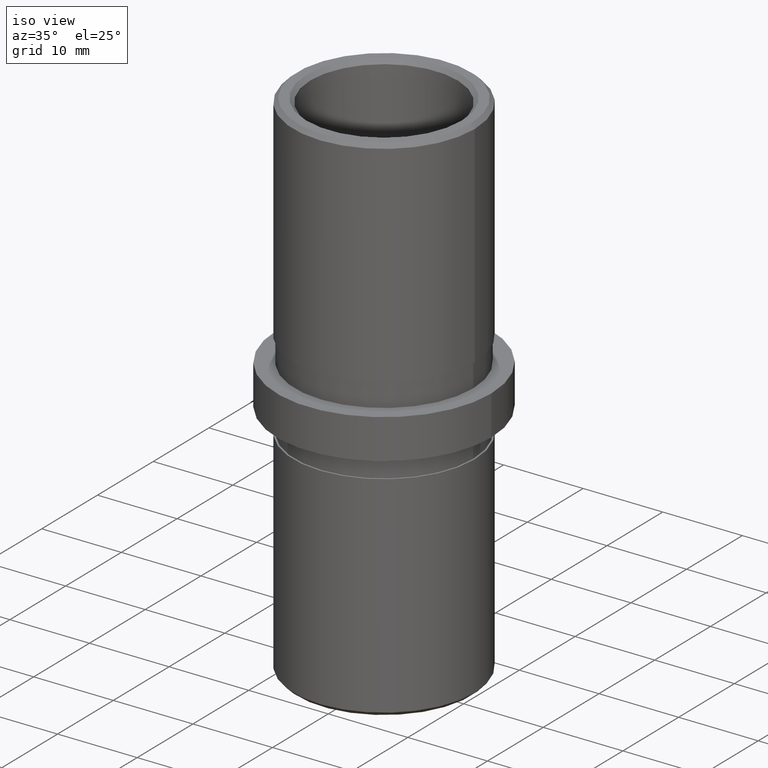
[diagram: clean part render]
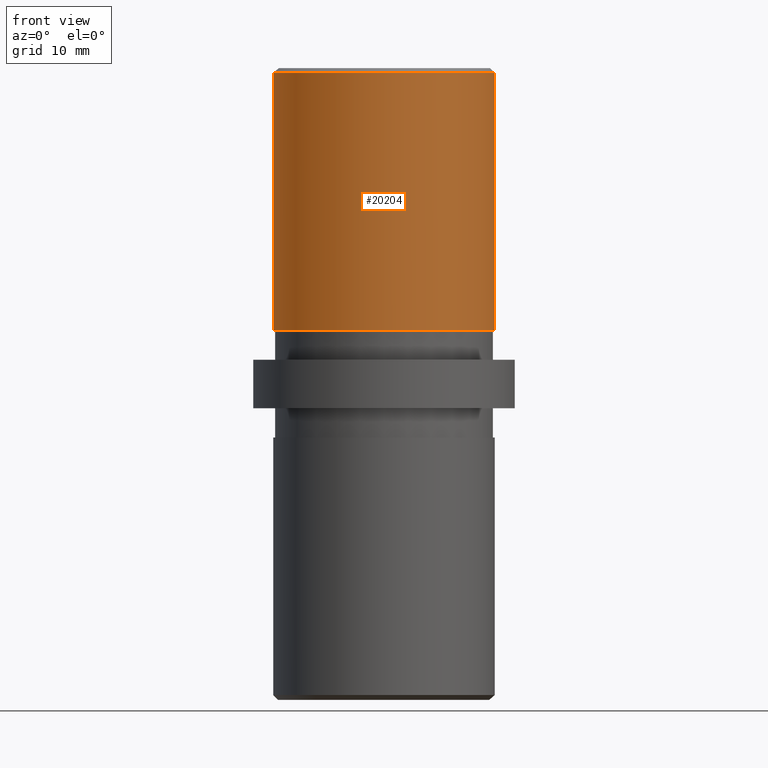
[diagram: tour spotlight — one face highlighted and labeled with its STEP entity id]
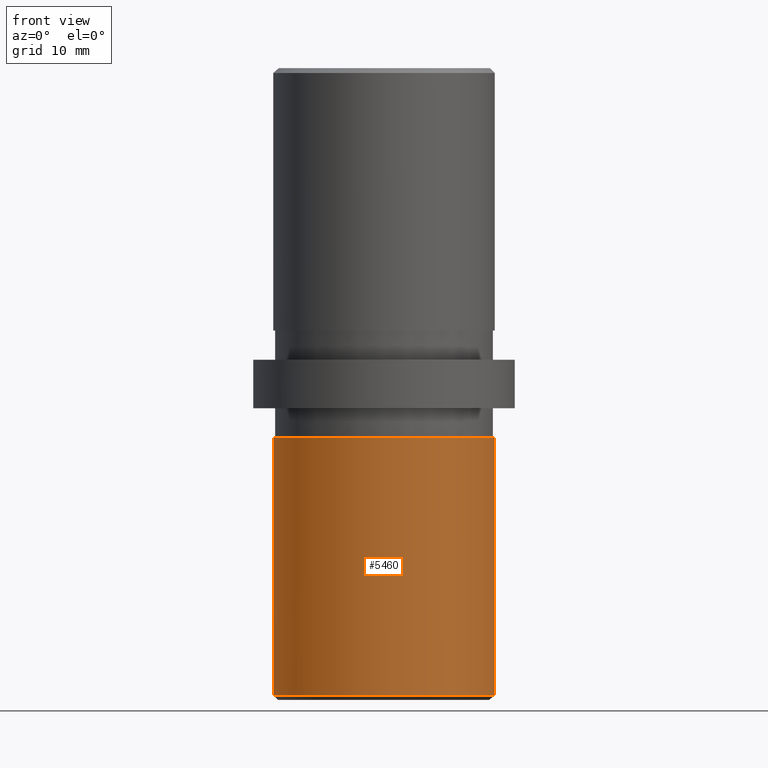
[diagram: tour spotlight — one face highlighted and labeled with its STEP entity id]
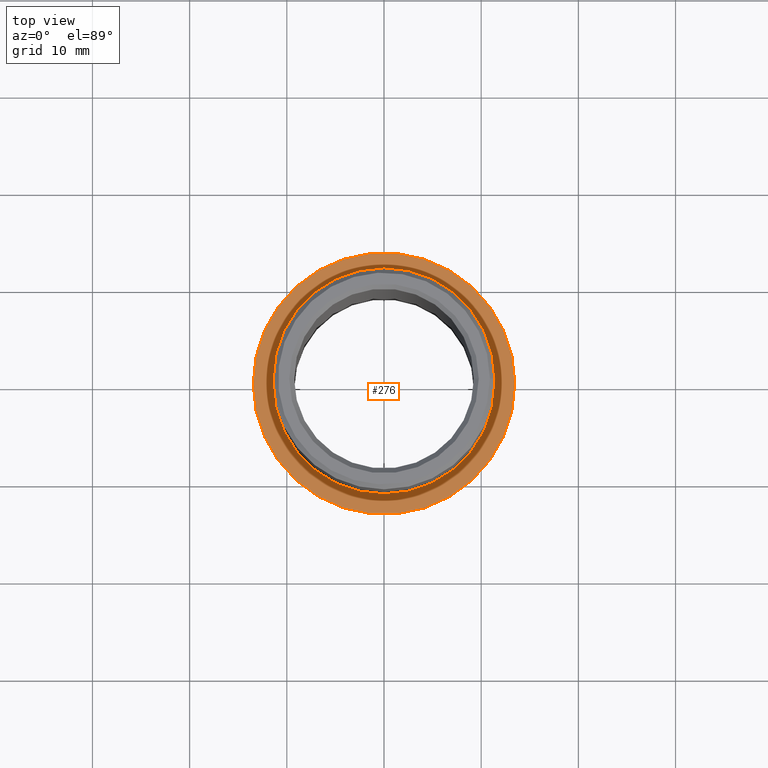
[diagram: tour spotlight — one face highlighted and labeled with its STEP entity id]
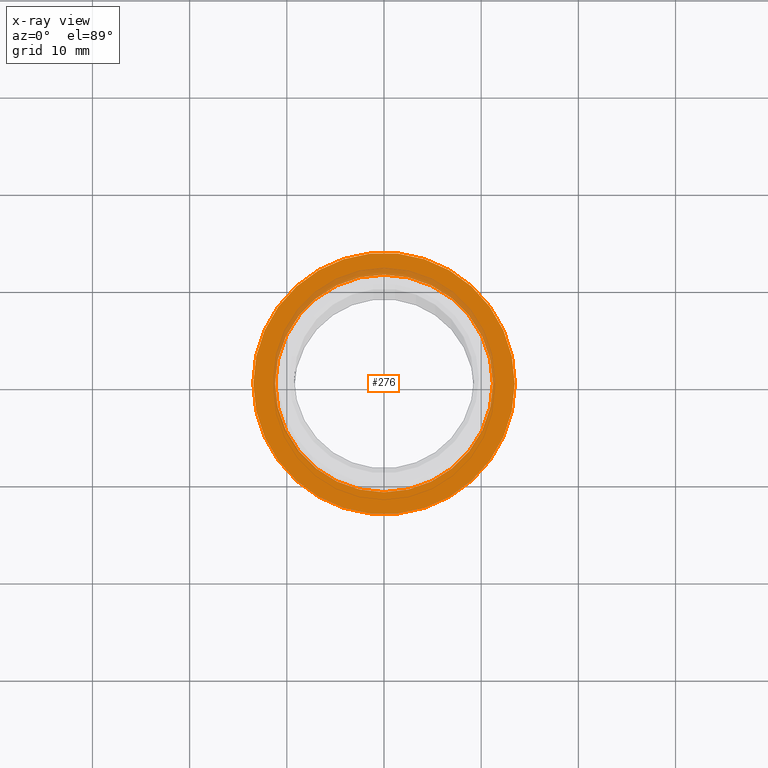
[diagram: x-ray of the same camera — body ghosted, this tour face saturated]
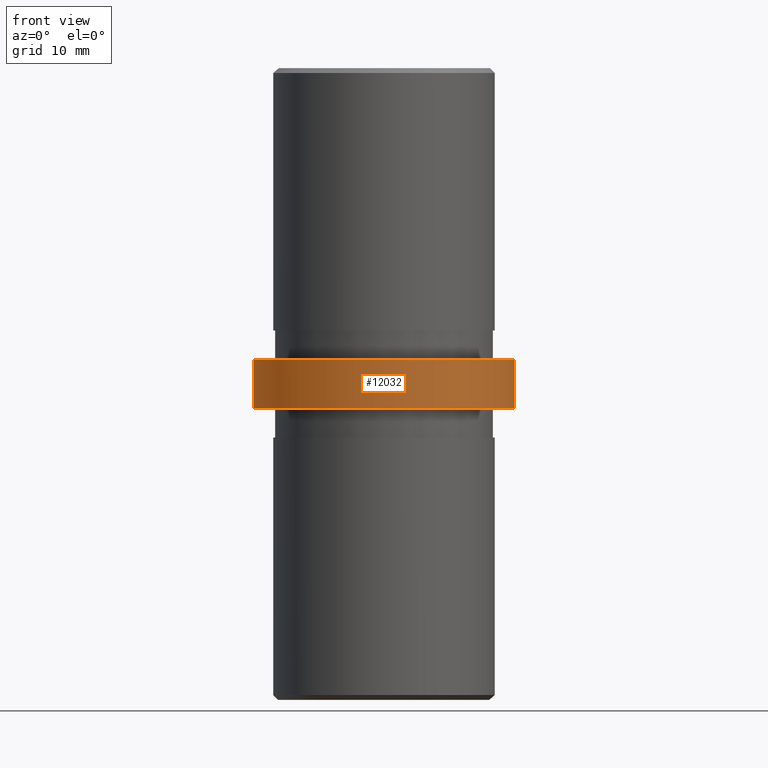
[diagram: tour spotlight — one face highlighted and labeled with its STEP entity id]
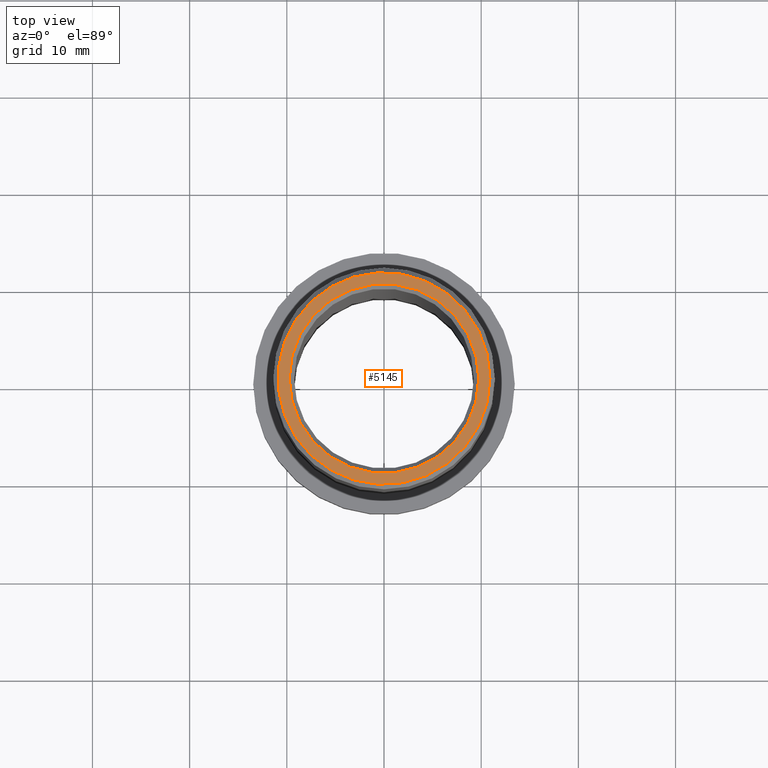
[diagram: tour spotlight — one face highlighted and labeled with its STEP entity id]
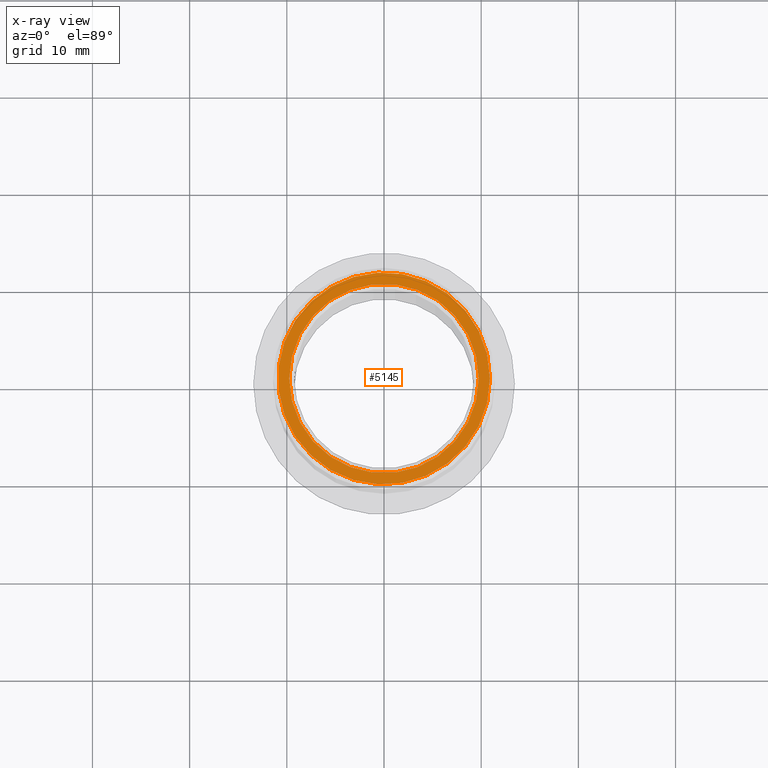
[diagram: x-ray of the same camera — body ghosted, this tour face saturated]
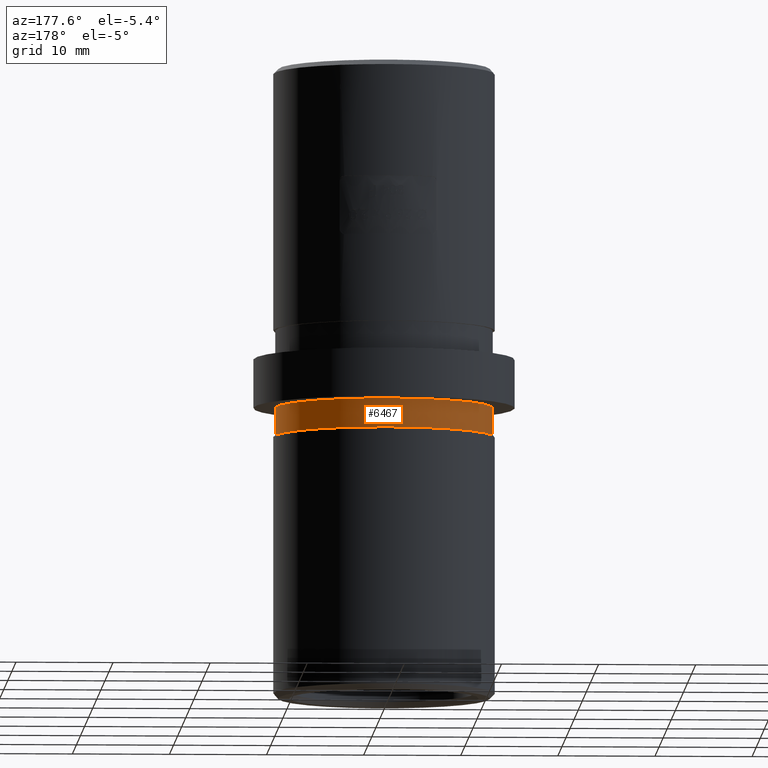
[diagram: tour spotlight — one face highlighted and labeled with its STEP entity id]
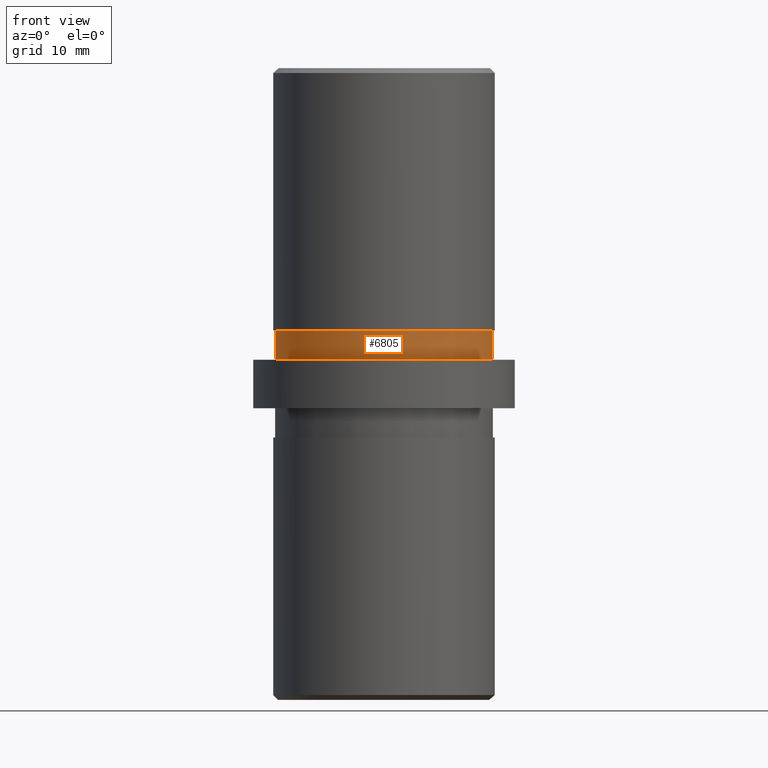
[diagram: tour spotlight — one face highlighted and labeled with its STEP entity id]
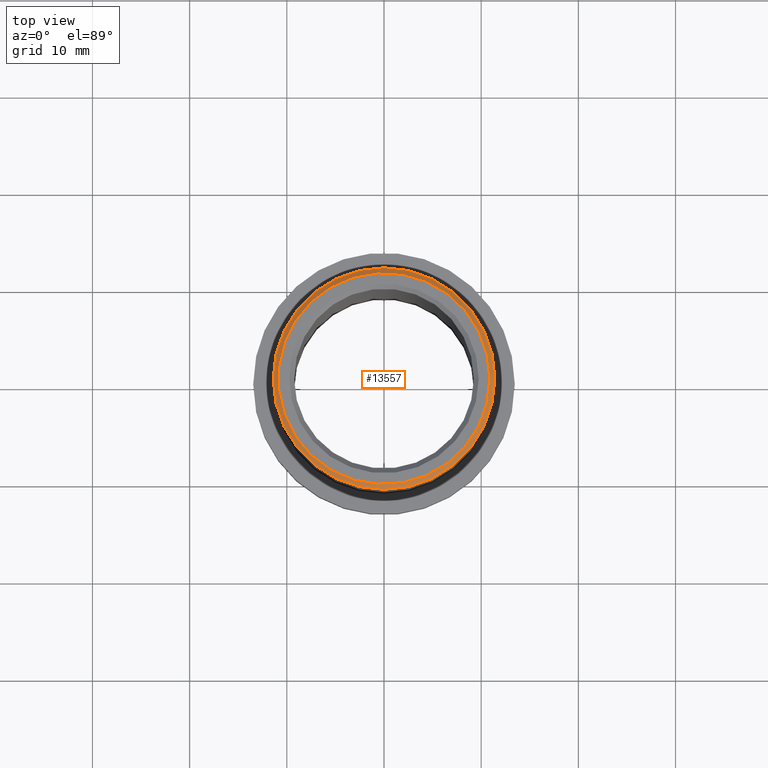
[diagram: tour spotlight — one face highlighted and labeled with its STEP entity id]
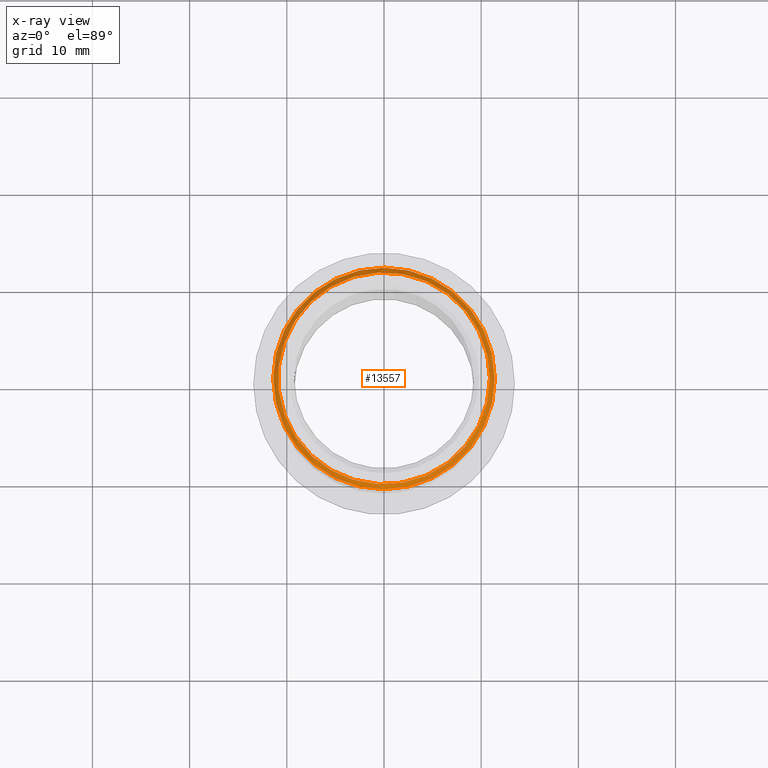
[diagram: x-ray of the same camera — body ghosted, this tour face saturated]
A machine part: a face-by-face anatomy tour. The part has 416 B-rep faces; the first image is the clean iso view, then the 8 largest visible faces are spotlighted one at a time (largest first), each with its STEP entity span.

Face 1 — front view, entity #20204. In plain terms, the highlighted cylindrical surface (bore or boss wall) has radius 11.4 mm, axis along (-0, -0, -1).
Definition (entity closure, byte-faithful):
#330 = EDGE_CURVE ( 'NONE', #13348, #13348, #7049, .T. ) ;
#884 = CARTESIAN_POINT ( 'NONE',  ( 4.751012916463460023, 10.36333854927969433, 14.54822077462146801 ) ) ;
#1168 = AXIS2_PLACEMENT_3D ( 'NONE', #10501, #12653, #9314 ) ;
#1365 = ORIENTED_EDGE ( 'NONE', *, *, #15067, .T. ) ;
#1384 = CARTESIAN_POINT ( 'NONE',  ( -4.499999999999998224, 10.47425415005765537, 20.50000000000000355 ) ) ;
#1707 = CARTESIAN_POINT ( 'NONE',  ( -4.999999999999999112, 10.24499877989255836, 20.13906817043983111 ) ) ;
#1773 = CARTESIAN_POINT ( 'NONE',  ( -4.999999999999996447, 10.24499877989256014, 20.00000000000000000 ) ) ;
#1848 = CARTESIAN_POINT ( 'NONE',  ( -4.499999999999998224, 10.47425415005765537, 20.50000000000000355 ) ) ;
#1908 = CARTESIAN_POINT ( 'NONE',  ( 5.000000000000003553, 10.24499877989255658, 32.50000000000000000 ) ) ;
#2032 = EDGE_CURVE ( 'NONE', #8870, #11290, #2797, .T. ) ;
#2208 = FACE_BOUND ( 'NONE', #12375, .T. ) ;
#2531 = CARTESIAN_POINT ( 'NONE',  ( -4.627191762389832874, 10.41960940661775403, 14.50000000000000178 ) ) ;
#2538 = CARTESIAN_POINT ( 'NONE',  ( 11.40000000000000036, 0.000000000000000000, 5.500000000000000000 ) ) ;
#2652 = VERTEX_POINT ( 'NONE', #3763 ) ;
#2797 = CIRCLE ( 'NONE', #1168, 11.40000000000000036 ) ;
#3044 = LINE ( 'NONE', #1908, #12001 ) ;
#3198 = DIRECTION ( 'NONE',  ( 1.000000000000000000, 0.000000000000000000, 0.000000000000000000 ) ) ;
#3666 = CYLINDRICAL_SURFACE ( 'NONE', #17550, 11.40000000000000036 ) ;
#3763 = CARTESIAN_POINT ( 'NONE',  ( 5.000000000000003553, 10.24499877989255658, 20.00000000000000355 ) ) ;
#3855 = VERTEX_POINT ( 'NONE', #18655 ) ;
#3941 = B_SPLINE_CURVE_WITH_KNOTS ( 'NONE', 3,
 ( #1848, #6683, #13051, #12984, #1707, #1773 ),
 .UNSPECIFIED., .F., .F.,
 ( 4, 2, 4 ),
 ( 8.673617379884034509E-19, 0.0004100866104508919742, 0.0008201732209017830811 ),
 .UNSPECIFIED. ) ;
#4239 = CARTESIAN_POINT ( 'NONE',  ( 5.000000000000000888, 10.24499877989256014, 14.86093182956016889 ) ) ;
#5087 = CARTESIAN_POINT ( 'NONE',  ( 4.939482889418027156, 10.27483479752883788, 20.27145732407431566 ) ) ;
#5541 = CARTESIAN_POINT ( 'NONE',  ( -4.999999999999996447, 10.24499877989256014, 20.00000000000000000 ) ) ;
#5571 = CARTESIAN_POINT ( 'NONE',  ( 4.940101426292657472, 10.27454658451313030, 14.72903378939378349 ) ) ;
#5639 = DIRECTION ( 'NONE',  ( 0.000000000000000000, 0.000000000000000000, -1.000000000000000000 ) ) ;
#5643 = AXIS2_PLACEMENT_3D ( 'NONE', #16591, #5639, #19832 ) ;
#5694 = DIRECTION ( 'NONE',  ( -3.469446951953614682E-16, 0.000000000000000000, 1.000000000000000000 ) ) ;
#5822 = DIRECTION ( 'NONE',  ( -1.000000000000000000, 0.000000000000000000, 0.000000000000000000 ) ) ;
#5895 = DIRECTION ( 'NONE',  ( 1.000000000000000000, 0.000000000000000000, 3.043374519257556029E-16 ) ) ;
#6015 = CIRCLE ( 'NONE', #8050, 11.40000000000000036 ) ;
#6518 = CARTESIAN_POINT ( 'NONE',  ( 4.500000000000001776, 10.47425415005765359, 20.50000000000000355 ) ) ;
#6532 = ORIENTED_EDGE ( 'NONE', *, *, #13594, .T. ) ;
#6683 = CARTESIAN_POINT ( 'NONE',  ( -4.627381495467767891, 10.41952789257021195, 20.49999999999999645 ) ) ;
#6969 = ORIENTED_EDGE ( 'NONE', *, *, #330, .T. ) ;
#7049 = CIRCLE ( 'NONE', #5643, 11.40000000000000036 ) ;
#7205 = CIRCLE ( 'NONE', #11068, 11.40000000000000036 ) ;
#7716 = ORIENTED_EDGE ( 'NONE', *, *, #15297, .F. ) ;
#8050 = AXIS2_PLACEMENT_3D ( 'NONE', #10839, #14264, #3198 ) ;
#8833 = EDGE_LOOP ( 'NONE', ( #13433 ) ) ;
#8839 = VERTEX_POINT ( 'NONE', #19214 ) ;
#8870 = VERTEX_POINT ( 'NONE', #11547 ) ;
#9314 = DIRECTION ( 'NONE',  ( 1.000000000000000000, 0.000000000000000000, 0.000000000000000000 ) ) ;
#9689 = ORIENTED_EDGE ( 'NONE', *, *, #18413, .T. ) ;
#10140 = FACE_OUTER_BOUND ( 'NONE', #8833, .T. ) ;
#10283 = CARTESIAN_POINT ( 'NONE',  ( 4.627381495467772332, 10.41952789257021195, 14.49999999999999645 ) ) ;
#10488 = LINE ( 'NONE', #17131, #15903 ) ;
#10501 = CARTESIAN_POINT ( 'NONE',  ( 0.000000000000000000, 0.000000000000000000, 14.49999999999999822 ) ) ;
#10686 = CARTESIAN_POINT ( 'NONE',  ( 0.000000000000000000, 0.000000000000000000, 20.50000000000000355 ) ) ;
#10839 = CARTESIAN_POINT ( 'NONE',  ( 0.000000000000000000, 0.000000000000000000, 5.500000000000000000 ) ) ;
#11068 = AXIS2_PLACEMENT_3D ( 'NONE', #10686, #5694, #5895 ) ;
#11212 = CARTESIAN_POINT ( 'NONE',  ( 4.627191762389834651, 10.41960940661775048, 20.50000000000000355 ) ) ;
#11290 = VERTEX_POINT ( 'NONE', #19800 ) ;
#11354 = CARTESIAN_POINT ( 'NONE',  ( 5.000000000000000888, 10.24499877989255658, 20.13875873895914026 ) ) ;
#11547 = CARTESIAN_POINT ( 'NONE',  ( 4.500000000000001776, 10.47425415005765537, 14.49999999999999822 ) ) ;
#12000 = EDGE_LOOP ( 'NONE', ( #6969 ) ) ;
#12001 = VECTOR ( 'NONE', #12981, 1000.000000000000000 ) ;
#12109 = CARTESIAN_POINT ( 'NONE',  ( -4.939482889418023603, 10.27483479752884143, 14.72854267592569855 ) ) ;
#12281 = DIRECTION ( 'NONE',  ( -0.000000000000000000, -0.000000000000000000, -1.000000000000000000 ) ) ;
#12375 = EDGE_LOOP ( 'NONE', ( #7716, #13509, #9689, #16669, #15310, #1365, #13471, #6532 ) ) ;
#12640 = DIRECTION ( 'NONE',  ( -0.000000000000000000, -0.000000000000000000, -1.000000000000000000 ) ) ;
#12653 = DIRECTION ( 'NONE',  ( -0.000000000000000000, 0.000000000000000000, 1.000000000000000000 ) ) ;
#12793 = CARTESIAN_POINT ( 'NONE',  ( 5.000000000000003553, 10.24499877989255658, 20.00000000000000355 ) ) ;
#12857 = CARTESIAN_POINT ( 'NONE',  ( 4.752034932197159556, 10.36286086631201009, 20.45090207566297380 ) ) ;
#12981 = DIRECTION ( 'NONE',  ( -0.000000000000000000, -0.000000000000000000, -1.000000000000000000 ) ) ;
#12984 = CARTESIAN_POINT ( 'NONE',  ( -4.940101426292656583, 10.27454658451313030, 20.27096621060621118 ) ) ;
#13051 = CARTESIAN_POINT ( 'NONE',  ( -4.751012916463458247, 10.36333854927969433, 20.45177922537854087 ) ) ;
#13332 = EDGE_CURVE ( 'NONE', #17007, #14671, #3941, .T. ) ;
#13336 = EDGE_CURVE ( 'NONE', #2652, #18564, #14665, .T. ) ;
#13348 = VERTEX_POINT ( 'NONE', #14846 ) ;
#13433 = ORIENTED_EDGE ( 'NONE', *, *, #14512, .T. ) ;
#13471 = ORIENTED_EDGE ( 'NONE', *, *, #2032, .F. ) ;
#13509 = ORIENTED_EDGE ( 'NONE', *, *, #13336, .T. ) ;
#13594 = EDGE_CURVE ( 'NONE', #8870, #3855, #16247, .T. ) ;
#14264 = DIRECTION ( 'NONE',  ( 0.000000000000000000, 0.000000000000000000, 1.000000000000000000 ) ) ;
#14512 = EDGE_CURVE ( 'NONE', #19459, #19459, #6015, .T. ) ;
#14665 = B_SPLINE_CURVE_WITH_KNOTS ( 'NONE', 3,
 ( #12793, #11354, #5087, #12857, #11212, #19149 ),
 .UNSPECIFIED., .F., .F.,
 ( 4, 2, 4 ),
 ( 0.000000000000000000, 0.0004100544316980266925, 0.0008201088633960533850 ),
 .UNSPECIFIED. ) ;
#14671 = VERTEX_POINT ( 'NONE', #5541 ) ;
#14846 = CARTESIAN_POINT ( 'NONE',  ( 11.40000000000000036, 0.000000000000000000, 31.99999999999998579 ) ) ;
#14988 = B_SPLINE_CURVE_WITH_KNOTS ( 'NONE', 3,
 ( #18322, #18455, #12109, #15255, #2531, #18256 ),
 .UNSPECIFIED., .F., .F.,
 ( 4, 2, 4 ),
 ( 1.734723475976807094E-18, 0.0004100544316980272888, 0.0008201088633960528429 ),
 .UNSPECIFIED. ) ;
#15067 = EDGE_CURVE ( 'NONE', #8839, #11290, #14988, .T. ) ;
#15241 = CARTESIAN_POINT ( 'NONE',  ( 4.500000000000001776, 10.47425415005765537, 14.49999999999999822 ) ) ;
#15255 = CARTESIAN_POINT ( 'NONE',  ( -4.752034932197156003, 10.36286086631201009, 14.54909792433702975 ) ) ;
#15297 = EDGE_CURVE ( 'NONE', #2652, #3855, #3044, .T. ) ;
#15310 = ORIENTED_EDGE ( 'NONE', *, *, #15558, .T. ) ;
#15558 = EDGE_CURVE ( 'NONE', #14671, #8839, #10488, .T. ) ;
#15903 = VECTOR ( 'NONE', #12640, 1000.000000000000000 ) ;
#16247 = B_SPLINE_CURVE_WITH_KNOTS ( 'NONE', 3,
 ( #15241, #10283, #884, #5571, #4239, #18171 ),
 .UNSPECIFIED., .F., .F.,
 ( 4, 2, 4 ),
 ( 0.000000000000000000, 0.0004100866104508907816, 0.0008201732209017815632 ),
 .UNSPECIFIED. ) ;
#16591 = CARTESIAN_POINT ( 'NONE',  ( 0.000000000000000000, 0.000000000000000000, 31.99999999999998579 ) ) ;
#16669 = ORIENTED_EDGE ( 'NONE', *, *, #13332, .T. ) ;
#16764 = FACE_OUTER_BOUND ( 'NONE', #12000, .T. ) ;
#17007 = VERTEX_POINT ( 'NONE', #1384 ) ;
#17131 = CARTESIAN_POINT ( 'NONE',  ( -4.999999999999996447, 10.24499877989256014, 32.50000000000000000 ) ) ;
#17550 = AXIS2_PLACEMENT_3D ( 'NONE', #19940, #12281, #5822 ) ;
#18171 = CARTESIAN_POINT ( 'NONE',  ( 5.000000000000003553, 10.24499877989255658, 15.00000000000000000 ) ) ;
#18256 = CARTESIAN_POINT ( 'NONE',  ( -4.499999999999998224, 10.47425415005765359, 14.49999999999999822 ) ) ;
#18322 = CARTESIAN_POINT ( 'NONE',  ( -4.999999999999996447, 10.24499877989256014, 15.00000000000000000 ) ) ;
#18413 = EDGE_CURVE ( 'NONE', #18564, #17007, #7205, .T. ) ;
#18455 = CARTESIAN_POINT ( 'NONE',  ( -4.999999999999999112, 10.24499877989255836, 14.86124126104086862 ) ) ;
#18564 = VERTEX_POINT ( 'NONE', #6518 ) ;
#18655 = CARTESIAN_POINT ( 'NONE',  ( 5.000000000000003553, 10.24499877989255658, 15.00000000000000000 ) ) ;
#19149 = CARTESIAN_POINT ( 'NONE',  ( 4.500000000000001776, 10.47425415005765359, 20.50000000000000355 ) ) ;
#19214 = CARTESIAN_POINT ( 'NONE',  ( -4.999999999999996447, 10.24499877989256014, 15.00000000000000000 ) ) ;
#19459 = VERTEX_POINT ( 'NONE', #2538 ) ;
#19800 = CARTESIAN_POINT ( 'NONE',  ( -4.499999999999998224, 10.47425415005765359, 14.49999999999999822 ) ) ;
#19832 = DIRECTION ( 'NONE',  ( 1.000000000000000000, 0.000000000000000000, 0.000000000000000000 ) ) ;
#19940 = CARTESIAN_POINT ( 'NONE',  ( 0.000000000000000000, 0.000000000000000000, 32.50000000000000000 ) ) ;
#20204 = ADVANCED_FACE ( 'NONE', ( #2208, #16764, #10140 ), #3666, .T. ) ;

Face 2 — front view, entity #5460. In plain terms, the highlighted cylindrical surface (bore or boss wall) has radius 11.4 mm, axis along (-0, -0, 1).
Definition (entity closure, byte-faithful):
#1125 = EDGE_LOOP ( 'NONE', ( #16680 ) ) ;
#1540 = DIRECTION ( 'NONE',  ( -1.000000000000000000, 0.000000000000000000, 0.000000000000000000 ) ) ;
#1996 = CARTESIAN_POINT ( 'NONE',  ( -11.40000000000000036, 0.000000000000000000, -31.99999999999998579 ) ) ;
#2031 = CARTESIAN_POINT ( 'NONE',  ( 0.000000000000000000, 0.000000000000000000, -32.50000000000000000 ) ) ;
#4919 = VERTEX_POINT ( 'NONE', #1996 ) ;
#5460 = ADVANCED_FACE ( 'NONE', ( #20024, #11227 ), #7966, .T. ) ;
#7350 = DIRECTION ( 'NONE',  ( -1.000000000000000000, 0.000000000000000000, 0.000000000000000000 ) ) ;
#7844 = EDGE_LOOP ( 'NONE', ( #10910 ) ) ;
#7966 = CYLINDRICAL_SURFACE ( 'NONE', #16657, 11.40000000000000036 ) ;
#8276 = EDGE_CURVE ( 'NONE', #4919, #4919, #12140, .T. ) ;
#8374 = EDGE_CURVE ( 'NONE', #15309, #15309, #10400, .T. ) ;
#10400 = CIRCLE ( 'NONE', #13938, 11.40000000000000036 ) ;
#10897 = DIRECTION ( 'NONE',  ( -0.000000000000000000, -0.000000000000000000, 1.000000000000000000 ) ) ;
#10910 = ORIENTED_EDGE ( 'NONE', *, *, #8276, .T. ) ;
#11227 = FACE_OUTER_BOUND ( 'NONE', #1125, .T. ) ;
#12140 = CIRCLE ( 'NONE', #19973, 11.40000000000000036 ) ;
#13009 = CARTESIAN_POINT ( 'NONE',  ( 0.000000000000000000, 0.000000000000000000, -5.500000000000000000 ) ) ;
#13073 = CARTESIAN_POINT ( 'NONE',  ( 11.40000000000000036, 0.000000000000000000, -5.500000000000000000 ) ) ;
#13112 = DIRECTION ( 'NONE',  ( -0.000000000000000000, -0.000000000000000000, 1.000000000000000000 ) ) ;
#13938 = AXIS2_PLACEMENT_3D ( 'NONE', #13009, #17578, #14382 ) ;
#14382 = DIRECTION ( 'NONE',  ( 1.000000000000000000, 0.000000000000000000, 0.000000000000000000 ) ) ;
#15309 = VERTEX_POINT ( 'NONE', #13073 ) ;
#16657 = AXIS2_PLACEMENT_3D ( 'NONE', #2031, #13112, #7350 ) ;
#16680 = ORIENTED_EDGE ( 'NONE', *, *, #8374, .F. ) ;
#17578 = DIRECTION ( 'NONE',  ( -0.000000000000000000, -0.000000000000000000, 1.000000000000000000 ) ) ;
#18975 = CARTESIAN_POINT ( 'NONE',  ( 0.000000000000000000, 0.000000000000000000, -31.99999999999998579 ) ) ;
#19973 = AXIS2_PLACEMENT_3D ( 'NONE', #18975, #10897, #1540 ) ;
#20024 = FACE_OUTER_BOUND ( 'NONE', #7844, .T. ) ;

Face 3 — top view, entity #276. An x-ray twin of the same camera follows (body ghosted, this face saturated) — the face is partly hidden behind the body. In plain terms, the highlighted planar face has unit normal (0, 0, 1).
Definition (entity closure, byte-faithful):
#276 = ADVANCED_FACE ( 'NONE', ( #2586, #8522 ), #1913, .T. ) ;
#1067 = ORIENTED_EDGE ( 'NONE', *, *, #19118, .F. ) ;
#1307 = EDGE_CURVE ( 'NONE', #11143, #11143, #2338, .T. ) ;
#1556 = ORIENTED_EDGE ( 'NONE', *, *, #1307, .T. ) ;
#1913 = PLANE ( 'NONE',  #14127 ) ;
#2112 = DIRECTION ( 'NONE',  ( 1.000000000000000000, 0.000000000000000000, -0.000000000000000000 ) ) ;
#2338 = CIRCLE ( 'NONE', #6589, 13.44999999999999929 ) ;
#2586 = FACE_BOUND ( 'NONE', #10840, .T. ) ;
#2597 = DIRECTION ( 'NONE',  ( 0.000000000000000000, 0.000000000000000000, 1.000000000000000000 ) ) ;
#4190 = CARTESIAN_POINT ( 'NONE',  ( 0.000000000000000000, 0.000000000000000000, 2.500000000000000000 ) ) ;
#5523 = CARTESIAN_POINT ( 'NONE',  ( 11.20000000000000107, 0.000000000000000000, 2.500000000000000000 ) ) ;
#6589 = AXIS2_PLACEMENT_3D ( 'NONE', #12971, #17676, #14602 ) ;
#8404 = CARTESIAN_POINT ( 'NONE',  ( 0.000000000000000000, 0.000000000000000000, 2.500000000000000000 ) ) ;
#8522 = FACE_OUTER_BOUND ( 'NONE', #18182, .T. ) ;
#9408 = CIRCLE ( 'NONE', #13228, 11.20000000000000107 ) ;
#10222 = DIRECTION ( 'NONE',  ( 1.000000000000000000, 0.000000000000000000, 0.000000000000000000 ) ) ;
#10840 = EDGE_LOOP ( 'NONE', ( #1067 ) ) ;
#11143 = VERTEX_POINT ( 'NONE', #19299 ) ;
#12971 = CARTESIAN_POINT ( 'NONE',  ( 0.000000000000000000, 0.000000000000000000, 2.500000000000000000 ) ) ;
#13124 = DIRECTION ( 'NONE',  ( 0.000000000000000000, 0.000000000000000000, 1.000000000000000000 ) ) ;
#13228 = AXIS2_PLACEMENT_3D ( 'NONE', #4190, #2597, #10222 ) ;
#14127 = AXIS2_PLACEMENT_3D ( 'NONE', #8404, #13124, #2112 ) ;
#14602 = DIRECTION ( 'NONE',  ( 1.000000000000000000, 0.000000000000000000, 0.000000000000000000 ) ) ;
#17676 = DIRECTION ( 'NONE',  ( 0.000000000000000000, 0.000000000000000000, 1.000000000000000000 ) ) ;
#18182 = EDGE_LOOP ( 'NONE', ( #1556 ) ) ;
#19118 = EDGE_CURVE ( 'NONE', #20202, #20202, #9408, .T. ) ;
#19299 = CARTESIAN_POINT ( 'NONE',  ( 13.44999999999999929, 0.000000000000000000, 2.500000000000000000 ) ) ;
#20202 = VERTEX_POINT ( 'NONE', #5523 ) ;

Face 4 — front view, entity #12032. In plain terms, the highlighted cylindrical surface (bore or boss wall) has radius 13.45 mm, axis along (-0, -0, -1).
Definition (entity closure, byte-faithful):
#97 = DIRECTION ( 'NONE',  ( -0.000000000000000000, -0.000000000000000000, 1.000000000000000000 ) ) ;
#1307 = EDGE_CURVE ( 'NONE', #11143, #11143, #2338, .T. ) ;
#2338 = CIRCLE ( 'NONE', #6589, 13.44999999999999929 ) ;
#2668 = DIRECTION ( 'NONE',  ( -0.000000000000000000, -0.000000000000000000, -1.000000000000000000 ) ) ;
#5100 = AXIS2_PLACEMENT_3D ( 'NONE', #13610, #2668, #7186 ) ;
#5251 = CYLINDRICAL_SURFACE ( 'NONE', #5100, 13.44999999999999929 ) ;
#6370 = DIRECTION ( 'NONE',  ( 1.000000000000000000, 0.000000000000000000, 0.000000000000000000 ) ) ;
#6589 = AXIS2_PLACEMENT_3D ( 'NONE', #12971, #17676, #14602 ) ;
#7186 = DIRECTION ( 'NONE',  ( -1.000000000000000000, 0.000000000000000000, 0.000000000000000000 ) ) ;
#9510 = FACE_OUTER_BOUND ( 'NONE', #17948, .T. ) ;
#10241 = CIRCLE ( 'NONE', #15183, 13.44999999999999929 ) ;
#10634 = VERTEX_POINT ( 'NONE', #19638 ) ;
#11143 = VERTEX_POINT ( 'NONE', #19299 ) ;
#12032 = ADVANCED_FACE ( 'NONE', ( #9510, #13490 ), #5251, .T. ) ;
#12971 = CARTESIAN_POINT ( 'NONE',  ( 0.000000000000000000, 0.000000000000000000, 2.500000000000000000 ) ) ;
#13490 = FACE_OUTER_BOUND ( 'NONE', #16572, .T. ) ;
#13610 = CARTESIAN_POINT ( 'NONE',  ( 0.000000000000000000, 0.000000000000000000, 2.500000000000000000 ) ) ;
#14174 = CARTESIAN_POINT ( 'NONE',  ( 0.000000000000000000, 0.000000000000000000, -2.500000000000000000 ) ) ;
#14602 = DIRECTION ( 'NONE',  ( 1.000000000000000000, 0.000000000000000000, 0.000000000000000000 ) ) ;
#14742 = EDGE_CURVE ( 'NONE', #10634, #10634, #10241, .T. ) ;
#15096 = ORIENTED_EDGE ( 'NONE', *, *, #1307, .F. ) ;
#15183 = AXIS2_PLACEMENT_3D ( 'NONE', #14174, #97, #6370 ) ;
#16572 = EDGE_LOOP ( 'NONE', ( #18143 ) ) ;
#17676 = DIRECTION ( 'NONE',  ( 0.000000000000000000, 0.000000000000000000, 1.000000000000000000 ) ) ;
#17948 = EDGE_LOOP ( 'NONE', ( #15096 ) ) ;
#18143 = ORIENTED_EDGE ( 'NONE', *, *, #14742, .T. ) ;
#19299 = CARTESIAN_POINT ( 'NONE',  ( 13.44999999999999929, 0.000000000000000000, 2.500000000000000000 ) ) ;
#19638 = CARTESIAN_POINT ( 'NONE',  ( 13.44999999999999929, 0.000000000000000000, -2.500000000000000000 ) ) ;

Face 5 — top view, entity #5145. An x-ray twin of the same camera follows (body ghosted, this face saturated) — the face is partly hidden behind the body. In plain terms, the highlighted planar face has unit normal (0, 0, 1).
Definition (entity closure, byte-faithful):
#724 = EDGE_CURVE ( 'NONE', #15547, #15547, #15945, .T. ) ;
#729 = VERTEX_POINT ( 'NONE', #8354 ) ;
#2173 = EDGE_LOOP ( 'NONE', ( #18762 ) ) ;
#2201 = EDGE_LOOP ( 'NONE', ( #8876 ) ) ;
#3744 = FACE_OUTER_BOUND ( 'NONE', #2201, .T. ) ;
#5145 = ADVANCED_FACE ( 'NONE', ( #3744, #8463 ), #14692, .T. ) ;
#5322 = DIRECTION ( 'NONE',  ( 1.000000000000000000, 0.000000000000000000, 0.000000000000000000 ) ) ;
#5731 = CARTESIAN_POINT ( 'NONE',  ( 0.000000000000000000, 0.000000000000000000, 32.50000000000000000 ) ) ;
#7171 = DIRECTION ( 'NONE',  ( 0.000000000000000000, 0.000000000000000000, 1.000000000000000000 ) ) ;
#8330 = AXIS2_PLACEMENT_3D ( 'NONE', #13667, #7171, #18106 ) ;
#8354 = CARTESIAN_POINT ( 'NONE',  ( 9.750000000000015987, 0.000000000000000000, 32.50000000000000000 ) ) ;
#8463 = FACE_BOUND ( 'NONE', #2173, .T. ) ;
#8544 = EDGE_CURVE ( 'NONE', #729, #729, #19967, .T. ) ;
#8876 = ORIENTED_EDGE ( 'NONE', *, *, #724, .T. ) ;
#11926 = DIRECTION ( 'NONE',  ( -0.000000000000000000, -0.000000000000000000, -1.000000000000000000 ) ) ;
#13290 = AXIS2_PLACEMENT_3D ( 'NONE', #5731, #11926, #19982 ) ;
#13667 = CARTESIAN_POINT ( 'NONE',  ( 0.000000000000000000, 0.000000000000000000, 32.50000000000000000 ) ) ;
#14692 = PLANE ( 'NONE',  #8330 ) ;
#14786 = CARTESIAN_POINT ( 'NONE',  ( 0.000000000000000000, 0.000000000000000000, 32.50000000000000000 ) ) ;
#15452 = AXIS2_PLACEMENT_3D ( 'NONE', #14786, #18063, #5322 ) ;
#15547 = VERTEX_POINT ( 'NONE', #16159 ) ;
#15945 = CIRCLE ( 'NONE', #15452, 10.89999999999999147 ) ;
#16159 = CARTESIAN_POINT ( 'NONE',  ( 10.89999999999999147, 0.000000000000000000, 32.50000000000000000 ) ) ;
#18063 = DIRECTION ( 'NONE',  ( 0.000000000000000000, 0.000000000000000000, 1.000000000000000000 ) ) ;
#18106 = DIRECTION ( 'NONE',  ( 1.000000000000000000, 0.000000000000000000, -0.000000000000000000 ) ) ;
#18762 = ORIENTED_EDGE ( 'NONE', *, *, #8544, .T. ) ;
#19967 = CIRCLE ( 'NONE', #13290, 9.750000000000015987 ) ;
#19982 = DIRECTION ( 'NONE',  ( 1.000000000000000000, 0.000000000000000000, 0.000000000000000000 ) ) ;

Face 6 — auxiliary view, entity #6467. In plain terms, the highlighted cylindrical surface (bore or boss wall) has radius 11.2 mm, axis along (-0, -0, 1).
Definition (entity closure, byte-faithful):
#394 = DIRECTION ( 'NONE',  ( -0.000000000000000000, -0.000000000000000000, 1.000000000000000000 ) ) ;
#415 = AXIS2_PLACEMENT_3D ( 'NONE', #16995, #15305, #15445 ) ;
#1477 = ORIENTED_EDGE ( 'NONE', *, *, #17126, .T. ) ;
#1963 = CARTESIAN_POINT ( 'NONE',  ( 0.000000000000000000, 0.000000000000000000, -2.500000000000000000 ) ) ;
#2810 = EDGE_CURVE ( 'NONE', #17489, #17489, #19350, .T. ) ;
#2855 = EDGE_LOOP ( 'NONE', ( #1477 ) ) ;
#2987 = FACE_OUTER_BOUND ( 'NONE', #2855, .T. ) ;
#5097 = DIRECTION ( 'NONE',  ( 1.000000000000000000, 0.000000000000000000, 0.000000000000000000 ) ) ;
#6467 = ADVANCED_FACE ( 'NONE', ( #2987, #15869 ), #14385, .T. ) ;
#7979 = CIRCLE ( 'NONE', #10327, 11.20000000000000107 ) ;
#8210 = CARTESIAN_POINT ( 'NONE',  ( 0.000000000000000000, 0.000000000000000000, -5.500000000000000000 ) ) ;
#8390 = ORIENTED_EDGE ( 'NONE', *, *, #2810, .F. ) ;
#9639 = AXIS2_PLACEMENT_3D ( 'NONE', #1963, #394, #17747 ) ;
#9883 = CARTESIAN_POINT ( 'NONE',  ( 11.20000000000000107, 0.000000000000000000, -2.500000000000000000 ) ) ;
#10327 = AXIS2_PLACEMENT_3D ( 'NONE', #8210, #19226, #5097 ) ;
#13611 = CARTESIAN_POINT ( 'NONE',  ( 11.20000000000000107, 0.000000000000000000, -5.500000000000000000 ) ) ;
#14385 = CYLINDRICAL_SURFACE ( 'NONE', #415, 11.20000000000000107 ) ;
#15305 = DIRECTION ( 'NONE',  ( -0.000000000000000000, -0.000000000000000000, 1.000000000000000000 ) ) ;
#15445 = DIRECTION ( 'NONE',  ( -1.000000000000000000, 0.000000000000000000, 0.000000000000000000 ) ) ;
#15869 = FACE_OUTER_BOUND ( 'NONE', #19397, .T. ) ;
#16995 = CARTESIAN_POINT ( 'NONE',  ( 0.000000000000000000, 0.000000000000000000, -5.500000000000000000 ) ) ;
#17126 = EDGE_CURVE ( 'NONE', #19700, #19700, #7979, .T. ) ;
#17489 = VERTEX_POINT ( 'NONE', #9883 ) ;
#17747 = DIRECTION ( 'NONE',  ( 1.000000000000000000, 0.000000000000000000, 0.000000000000000000 ) ) ;
#19226 = DIRECTION ( 'NONE',  ( -0.000000000000000000, -0.000000000000000000, 1.000000000000000000 ) ) ;
#19350 = CIRCLE ( 'NONE', #9639, 11.20000000000000107 ) ;
#19397 = EDGE_LOOP ( 'NONE', ( #8390 ) ) ;
#19700 = VERTEX_POINT ( 'NONE', #13611 ) ;

Face 7 — front view, entity #6805. In plain terms, the highlighted cylindrical surface (bore or boss wall) has radius 11.2 mm, axis along (-0, -0, -1).
Definition (entity closure, byte-faithful):
#1036 = EDGE_CURVE ( 'NONE', #8627, #8627, #18119, .T. ) ;
#1261 = FACE_OUTER_BOUND ( 'NONE', #16861, .T. ) ;
#2398 = AXIS2_PLACEMENT_3D ( 'NONE', #2500, #12141, #15283 ) ;
#2500 = CARTESIAN_POINT ( 'NONE',  ( 0.000000000000000000, 0.000000000000000000, 5.500000000000000000 ) ) ;
#2597 = DIRECTION ( 'NONE',  ( 0.000000000000000000, 0.000000000000000000, 1.000000000000000000 ) ) ;
#4190 = CARTESIAN_POINT ( 'NONE',  ( 0.000000000000000000, 0.000000000000000000, 2.500000000000000000 ) ) ;
#5523 = CARTESIAN_POINT ( 'NONE',  ( 11.20000000000000107, 0.000000000000000000, 2.500000000000000000 ) ) ;
#6805 = ADVANCED_FACE ( 'NONE', ( #8936, #1261 ), #8667, .T. ) ;
#7173 = DIRECTION ( 'NONE',  ( 1.000000000000000000, 0.000000000000000000, 0.000000000000000000 ) ) ;
#8627 = VERTEX_POINT ( 'NONE', #13007 ) ;
#8667 = CYLINDRICAL_SURFACE ( 'NONE', #2398, 11.20000000000000107 ) ;
#8936 = FACE_OUTER_BOUND ( 'NONE', #18041, .T. ) ;
#9408 = CIRCLE ( 'NONE', #13228, 11.20000000000000107 ) ;
#10222 = DIRECTION ( 'NONE',  ( 1.000000000000000000, 0.000000000000000000, 0.000000000000000000 ) ) ;
#11522 = AXIS2_PLACEMENT_3D ( 'NONE', #19765, #15046, #7173 ) ;
#12043 = ORIENTED_EDGE ( 'NONE', *, *, #19118, .T. ) ;
#12141 = DIRECTION ( 'NONE',  ( -0.000000000000000000, -0.000000000000000000, -1.000000000000000000 ) ) ;
#13007 = CARTESIAN_POINT ( 'NONE',  ( 11.20000000000000107, 0.000000000000000000, 5.500000000000000000 ) ) ;
#13228 = AXIS2_PLACEMENT_3D ( 'NONE', #4190, #2597, #10222 ) ;
#15046 = DIRECTION ( 'NONE',  ( 0.000000000000000000, 0.000000000000000000, 1.000000000000000000 ) ) ;
#15283 = DIRECTION ( 'NONE',  ( -1.000000000000000000, 0.000000000000000000, 0.000000000000000000 ) ) ;
#16861 = EDGE_LOOP ( 'NONE', ( #12043 ) ) ;
#18041 = EDGE_LOOP ( 'NONE', ( #20151 ) ) ;
#18119 = CIRCLE ( 'NONE', #11522, 11.20000000000000107 ) ;
#19118 = EDGE_CURVE ( 'NONE', #20202, #20202, #9408, .T. ) ;
#19765 = CARTESIAN_POINT ( 'NONE',  ( 0.000000000000000000, 0.000000000000000000, 5.500000000000000000 ) ) ;
#20151 = ORIENTED_EDGE ( 'NONE', *, *, #1036, .F. ) ;
#20202 = VERTEX_POINT ( 'NONE', #5523 ) ;

Face 8 — top view, entity #13557. An x-ray twin of the same camera follows (body ghosted, this face saturated) — the face is partly hidden behind the body. In plain terms, the highlighted conical surface has half-angle 45 deg.
Definition (entity closure, byte-faithful):
#330 = EDGE_CURVE ( 'NONE', #13348, #13348, #7049, .T. ) ;
#724 = EDGE_CURVE ( 'NONE', #15547, #15547, #15945, .T. ) ;
#1383 = ORIENTED_EDGE ( 'NONE', *, *, #724, .F. ) ;
#1591 = CONICAL_SURFACE ( 'NONE', #4309, 10.89999999999999147, 0.7853981633974430610 ) ;
#4309 = AXIS2_PLACEMENT_3D ( 'NONE', #13187, #14965, #13396 ) ;
#4829 = EDGE_LOOP ( 'NONE', ( #10192 ) ) ;
#5277 = FACE_OUTER_BOUND ( 'NONE', #4829, .T. ) ;
#5322 = DIRECTION ( 'NONE',  ( 1.000000000000000000, 0.000000000000000000, 0.000000000000000000 ) ) ;
#5639 = DIRECTION ( 'NONE',  ( 0.000000000000000000, 0.000000000000000000, -1.000000000000000000 ) ) ;
#5643 = AXIS2_PLACEMENT_3D ( 'NONE', #16591, #5639, #19832 ) ;
#7049 = CIRCLE ( 'NONE', #5643, 11.40000000000000036 ) ;
#9987 = FACE_BOUND ( 'NONE', #12680, .T. ) ;
#10192 = ORIENTED_EDGE ( 'NONE', *, *, #330, .F. ) ;
#12680 = EDGE_LOOP ( 'NONE', ( #1383 ) ) ;
#13187 = CARTESIAN_POINT ( 'NONE',  ( 0.000000000000000000, 0.000000000000000000, 32.50000000000000000 ) ) ;
#13348 = VERTEX_POINT ( 'NONE', #14846 ) ;
#13396 = DIRECTION ( 'NONE',  ( -1.000000000000000000, 0.000000000000000000, 0.000000000000000000 ) ) ;
#13557 = ADVANCED_FACE ( 'NONE', ( #5277, #9987 ), #1591, .T. ) ;
#14786 = CARTESIAN_POINT ( 'NONE',  ( 0.000000000000000000, 0.000000000000000000, 32.50000000000000000 ) ) ;
#14846 = CARTESIAN_POINT ( 'NONE',  ( 11.40000000000000036, 0.000000000000000000, 31.99999999999998579 ) ) ;
#14965 = DIRECTION ( 'NONE',  ( 0.000000000000000000, 0.000000000000000000, -1.000000000000000000 ) ) ;
#15452 = AXIS2_PLACEMENT_3D ( 'NONE', #14786, #18063, #5322 ) ;
#15547 = VERTEX_POINT ( 'NONE', #16159 ) ;
#15945 = CIRCLE ( 'NONE', #15452, 10.89999999999999147 ) ;
#16159 = CARTESIAN_POINT ( 'NONE',  ( 10.89999999999999147, 0.000000000000000000, 32.50000000000000000 ) ) ;
#16591 = CARTESIAN_POINT ( 'NONE',  ( 0.000000000000000000, 0.000000000000000000, 31.99999999999998579 ) ) ;
#18063 = DIRECTION ( 'NONE',  ( 0.000000000000000000, 0.000000000000000000, 1.000000000000000000 ) ) ;
#19832 = DIRECTION ( 'NONE',  ( 1.000000000000000000, 0.000000000000000000, 0.000000000000000000 ) ) ;